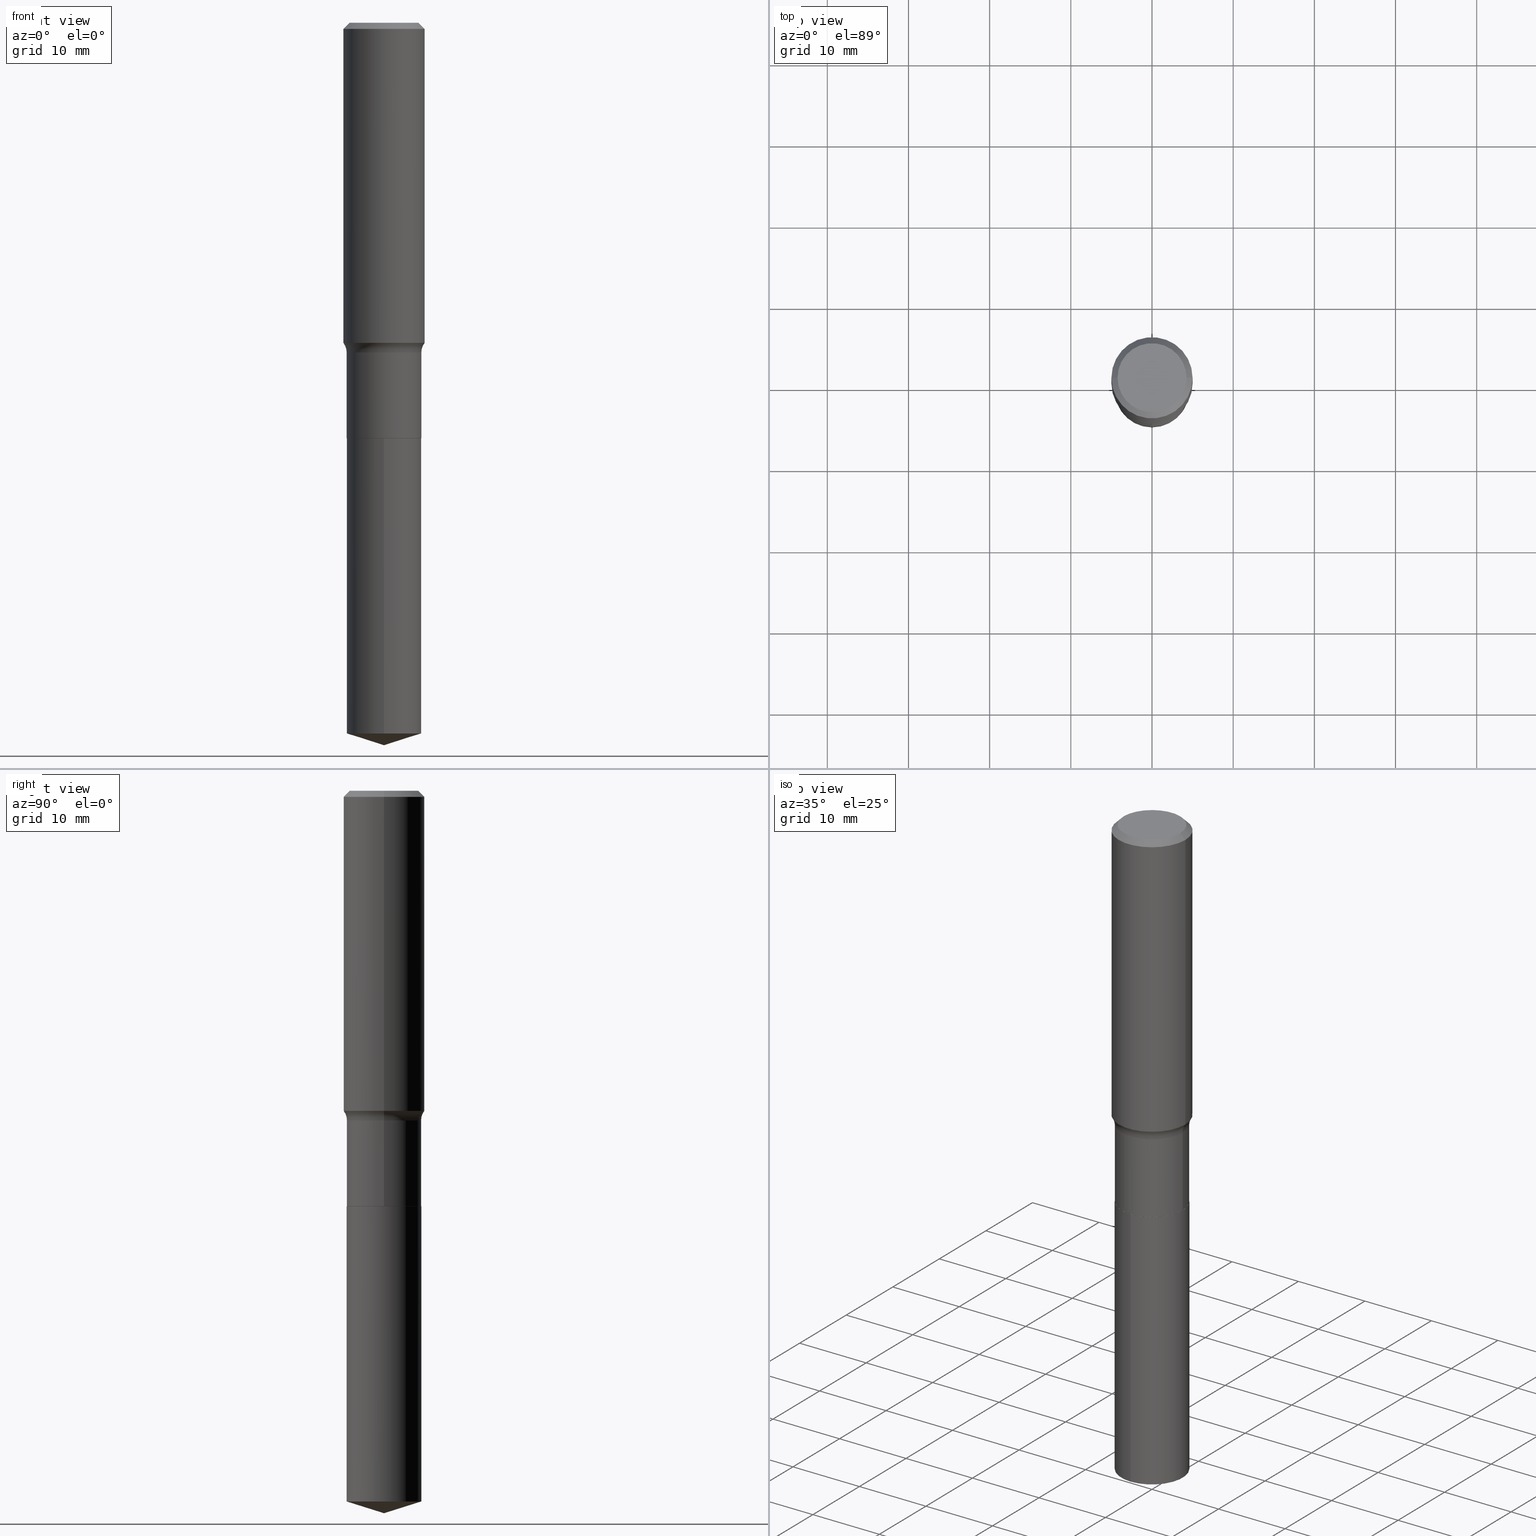
[diagram: canonical four-view strip — front | top / right | iso, engineering-drawing reading convention]
A machine part, canonical four-view strip (front | top / right | iso — engineering-drawing reading convention). The complete STEP part file that produces these views, byte-faithful:
ISO-10303-21;
HEADER;
FILE_DESCRIPTION (( 'STEP AP203' ),
    '1' );
FILE_NAME ('63774.STEP',
    '2024-04-19T15:09:34',
    ( '' ),
    ( '' ),
    'SwSTEP 2.0',
    'SolidWorks 2023',
    '' );
FILE_SCHEMA (( 'CONFIG_CONTROL_DESIGN' ));
ENDSEC;

DATA;
#1 = EDGE_LOOP ( 'NONE', ( #437, #14 ) ) ;
#2 = EDGE_CURVE ( 'NONE', #193, #15, #130, .T. ) ;
#3 = APPLICATION_CONTEXT ( 'configuration controlled 3d designs of mechanical parts and assemblies' ) ;
#4 = DIRECTION ( 'NONE',  ( 1.000000000000000000, 0.000000000000000000, 0.000000000000000000 ) ) ;
#5 = CARTESIAN_POINT ( 'NONE',  ( -0.1673224999999999851, 1.219954130253505460E-15, 4.096137381439757534E-18 ) ) ;
#6 = AXIS2_PLACEMENT_3D ( 'NONE', #238, #266, #38 ) ;
#7 = CARTESIAN_POINT ( 'NONE',  ( 0.000000000000000000, 0.000000000000000000, 0.000000000000000000 ) ) ;
#8 = EDGE_CURVE ( 'NONE', #320, #414, #295, .T. ) ;
#9 = CARTESIAN_POINT ( 'NONE',  ( 1.286792894461590621E-15, 0.1810999999999929888, -2.015700000000000269 ) ) ;
#10 = PLANE ( 'NONE',  #356 ) ;
#11 = ORIENTED_EDGE ( 'NONE', *, *, #373, .T. ) ;
#12 = DIRECTION ( 'NONE',  ( 1.000000000000000000, -6.982962677686267499E-15, 4.876294436782262290E-29 ) ) ;
#13 = DIRECTION ( 'NONE',  ( -2.445468806185136877E-29, 3.491481338843145188E-15, 1.000000000000000000 ) ) ;
#14 = ORIENTED_EDGE ( 'NONE', *, *, #8, .T. ) ;
#15 = VERTEX_POINT ( 'NONE', #308 ) ;
#16 = APPROVAL_DATE_TIME ( #470, #184 ) ;
#17 = VECTOR ( 'NONE', #368, 39.37007874015748143 ) ;
#18 = CYLINDRICAL_SURFACE ( 'NONE', #342, 0.1811000000000000110 ) ;
#19 = AXIS2_PLACEMENT_3D ( 'NONE', #27, #485, #62 ) ;
#20 = LOCAL_TIME ( 11, 9, 34.00000000000000000, #54 ) ;
#21 = ORIENTED_EDGE ( 'NONE', *, *, #136, .T. ) ;
#22 = EDGE_LOOP ( 'NONE', ( #168, #276, #388, #84 ) ) ;
#23 = AXIS2_PLACEMENT_3D ( 'NONE', #290, #448, #103 ) ;
#24 = EDGE_CURVE ( 'NONE', #323, #223, #187, .T. ) ;
#25 = CARTESIAN_POINT ( 'NONE',  ( 0.000000000000000000, 0.000000000000000000, 0.000000000000000000 ) ) ;
#26 = DIRECTION ( 'NONE',  ( 1.000000000000000000, -6.982962677686266711E-15, 4.876176775795935793E-29 ) ) ;
#27 = CARTESIAN_POINT ( 'NONE',  ( 3.910793714851269512E-29, -5.583576957077957107E-15, -1.599199999999999733 ) ) ;
#28 = EDGE_CURVE ( 'NONE', #414, #193, #408, .T. ) ;
#29 = AXIS2_PLACEMENT_3D ( 'NONE', #153, #111, #457 ) ;
#30 = DIRECTION ( 'NONE',  ( -2.445392554448218203E-29, 3.491590535670392048E-15, 1.000000000000000000 ) ) ;
#31 = CARTESIAN_POINT ( 'NONE',  ( 7.220858017463209485E-31, -1.030947152326916609E-16, -0.02952750000000019595 ) ) ;
#32 = DIRECTION ( 'NONE',  ( -2.445468806185136597E-29, 3.491481338843145583E-15, 1.000000000000000000 ) ) ;
#33 = AXIS2_PLACEMENT_3D ( 'NONE', #160, #382, #270 ) ;
#34 = CIRCLE ( 'NONE', #61, 0.1810999999999999832 ) ;
#35 = CC_DESIGN_SECURITY_CLASSIFICATION ( #419, ( #315 ) ) ;
#36 = DIRECTION ( 'NONE',  ( 1.000000000000000000, -6.982962677686266711E-15, 0.000000000000000000 ) ) ;
#37 = EDGE_CURVE ( 'NONE', #74, #271, #286, .T. ) ;
#38 = DIRECTION ( 'NONE',  ( -6.982962677686266711E-15, -1.000000000000000000, 3.016949744521549444E-15 ) ) ;
#39 = CARTESIAN_POINT ( 'NONE',  ( -0.1968500000000001082, 1.398703375343757985E-15, -9.682923725166787881E-30 ) ) ;
#40 = CIRCLE ( 'NONE', #6, 0.1811000000000000110 ) ;
#41 = LOCAL_TIME ( 11, 9, 34.00000000000000000, #121 ) ;
#42 = DIRECTION ( 'NONE',  ( -6.982962677686266711E-15, -1.000000000000000000, 3.016949744521549444E-15 ) ) ;
#43 = APPROVAL ( #237, 'UNSPECIFIED' ) ;
#44 = ORIENTED_EDGE ( 'NONE', *, *, #293, .F. ) ;
#45 = LINE ( 'NONE', #443, #188 ) ;
#46 = ORIENTED_EDGE ( 'NONE', *, *, #212, .F. ) ;
#47 = ORIENTED_EDGE ( 'NONE', *, *, #97, .F. ) ;
#48 = DIRECTION ( 'NONE',  ( 1.000000000000000000, -6.982962677686266711E-15, 4.876176775795936353E-29 ) ) ;
#49 = EDGE_LOOP ( 'NONE', ( #483, #436, #217, #452 ) ) ;
#50 = DATE_TIME_ROLE ( 'classification_date' ) ;
#51 = CIRCLE ( 'NONE', #76, 0.1806000000000000105 ) ;
#52 = ORIENTED_EDGE ( 'NONE', *, *, #136, .F. ) ;
#53 = LOCAL_TIME ( 11, 9, 34.00000000000000000, #281 ) ;
#54 = COORDINATED_UNIVERSAL_TIME_OFFSET ( 5, 0, .BEHIND. ) ;
#55 = ORIENTED_EDGE ( 'NONE', *, *, #37, .T. ) ;
#56 = DATE_AND_TIME ( #401, #190 ) ;
#57 = EDGE_CURVE ( 'NONE', #232, #223, #375, .T. ) ;
#58 = APPROVAL_STATUS ( 'not_yet_approved' ) ;
#59 = DIRECTION ( 'NONE',  ( 1.000000000000000000, -6.982962677686266711E-15, 4.876176775795936353E-29 ) ) ;
#60 = VECTOR ( 'NONE', #487, 39.37007874015748143 ) ;
#61 = AXIS2_PLACEMENT_3D ( 'NONE', #258, #491, #331 ) ;
#62 = DIRECTION ( 'NONE',  ( 1.000000000000000000, -6.982962677686265922E-15, 4.883557194083112901E-29 ) ) ;
#63 = ADVANCED_FACE ( 'NONE', ( #396 ), #75, .T. ) ;
#64 = FACE_OUTER_BOUND ( 'NONE', #72, .T. ) ;
#65 = CARTESIAN_POINT ( 'NONE',  ( 7.220858017463209485E-31, -1.030947152326916609E-16, -0.02952750000000019595 ) ) ;
#66 = CIRCLE ( 'NONE', #325, 0.1968500000000000527 ) ;
#67 = APPROVAL_PERSON_ORGANIZATION ( #353, #184, #321 ) ;
#68 = DESIGN_CONTEXT ( 'detailed design', #3, 'design' ) ;
#69 = DIRECTION ( 'NONE',  ( -2.445392554448218203E-29, 3.491590535670392048E-15, 1.000000000000000000 ) ) ;
#70 = CARTESIAN_POINT ( 'NONE',  ( -0.1968500000000000527, 1.271501487869850317E-15, -0.02952750000000019595 ) ) ;
#71 = CARTESIAN_POINT ( 'NONE',  ( -0.1806000000000000105, -5.754538753923386353E-15, -2.015699999999999381 ) ) ;
#72 = EDGE_LOOP ( 'NONE', ( #275, #123, #202, #267 ) ) ;
#73 = CARTESIAN_POINT ( 'NONE',  ( -0.1810999999999999832, -5.023012181095790067E-15, -1.599199999999999733 ) ) ;
#74 = VERTEX_POINT ( 'NONE', #479 ) ;
#75 = CONICAL_SURFACE ( 'NONE', #360, 0.1806000000000000105, 0.7853981633978239785 ) ;
#76 = AXIS2_PLACEMENT_3D ( 'NONE', #186, #87, #195 ) ;
#77 = ADVANCED_FACE ( 'NONE', ( #364 ), #171, .F. ) ;
#78 = DIRECTION ( 'NONE',  ( -6.659769872151632089E-15, -0.9537169507482267106, 0.3007057995042736187 ) ) ;
#79 = DIRECTION ( 'NONE',  ( -2.445468806185136597E-29, 3.491481338843145583E-15, 1.000000000000000000 ) ) ;
#80 = CARTESIAN_POINT ( 'NONE',  ( 4.928108738224286960E-29, -7.036033194036706451E-15, -2.015199999999999658 ) ) ;
#81 = DIRECTION ( 'NONE',  ( 1.000000000000000000, -6.982962677686263555E-15, 0.000000000000000000 ) ) ;
#82 = ADVANCED_FACE ( 'NONE', ( #431 ), #91, .T. ) ;
#83 = CARTESIAN_POINT ( 'NONE',  ( -0.1968500000000000527, -1.362583810088790289E-15, -0.02952750000000019595 ) ) ;
#84 = ORIENTED_EDGE ( 'NONE', *, *, #2, .F. ) ;
#85 = DIRECTION ( 'NONE',  ( -2.445468806185136597E-29, 3.491481338843145583E-15, 1.000000000000000000 ) ) ;
#86 = VERTEX_POINT ( 'NONE', #191 ) ;
#87 = DIRECTION ( 'NONE',  ( -2.445468806185136597E-29, 3.491481338843145583E-15, 1.000000000000000000 ) ) ;
#88 = ORIENTED_EDGE ( 'NONE', *, *, #110, .F. ) ;
#89 = ORIENTED_EDGE ( 'NONE', *, *, #142, .F. ) ;
#90 = PERSON_AND_ORGANIZATION_ROLE ( 'classification_officer' ) ;
#91 = CYLINDRICAL_SURFACE ( 'NONE', #312, 0.1811000000000000110 ) ;
#92 = ORIENTED_EDGE ( 'NONE', *, *, #24, .T. ) ;
#93 = EDGE_LOOP ( 'NONE', ( #89, #313 ) ) ;
#94 = DATE_AND_TIME ( #243, #41 ) ;
#95 = CIRCLE ( 'NONE', #426, 0.1811000000000000110 ) ;
#96 = ORIENTED_EDGE ( 'NONE', *, *, #322, .F. ) ;
#97 = EDGE_CURVE ( 'NONE', #127, #232, #228, .T. ) ;
#98 = DATE_TIME_ROLE ( 'creation_date' ) ;
#99 = FACE_OUTER_BOUND ( 'NONE', #472, .T. ) ;
#100 = EDGE_CURVE ( 'NONE', #86, #133, #207, .T. ) ;
#101 = APPROVAL_PERSON_ORGANIZATION ( #362, #43, #442 ) ;
#102 = DIRECTION ( 'NONE',  ( 1.000000000000000000, -6.982962677686266711E-15, 4.876176775795935793E-29 ) ) ;
#103 = DIRECTION ( 'NONE',  ( 1.000000000000000000, -6.982962677686266711E-15, 0.000000000000000000 ) ) ;
#104 = DIRECTION ( 'NONE',  ( -6.982962677686266711E-15, -1.000000000000000000, 3.491481338843145583E-15 ) ) ;
#105 = DIRECTION ( 'NONE',  ( 6.776566513254257349E-15, 0.9537169507482289310, 0.3007057995042669574 ) ) ;
#106 = AXIS2_PLACEMENT_3D ( 'NONE', #183, #337, #4 ) ;
#107 = CYLINDRICAL_SURFACE ( 'NONE', #165, 0.1968500000000001082 ) ;
#108 = EDGE_CURVE ( 'NONE', #86, #351, #135, .T. ) ;
#109 = LINE ( 'NONE', #304, #441 ) ;
#110 = EDGE_CURVE ( 'NONE', #271, #309, #349, .T. ) ;
#111 = DIRECTION ( 'NONE',  ( -2.445468806185136597E-29, 3.491481338843145583E-15, 1.000000000000000000 ) ) ;
#112 = CIRCLE ( 'NONE', #29, 0.1811000000000000110 ) ;
#113 = CARTESIAN_POINT ( 'NONE',  ( -1.001697619218021790E-46, 1.430158722866389718E-32, 4.096137381448108366E-18 ) ) ;
#114 = CC_DESIGN_PERSON_AND_ORGANIZATION_ASSIGNMENT ( #392, #124, ( #278 ) ) ;
#115 = DIRECTION ( 'NONE',  ( 2.445392554448217642E-29, -3.491590535670392442E-15, -1.000000000000000000 ) ) ;
#116 = DIRECTION ( 'NONE',  ( 1.000000000000000000, -6.982962677686266711E-15, 0.000000000000000000 ) ) ;
#117 = DIRECTION ( 'NONE',  ( -2.445468806185136597E-29, 3.491481338843145583E-15, 1.000000000000000000 ) ) ;
#118 = EDGE_LOOP ( 'NONE', ( #169, #432, #400, #46 ) ) ;
#119 = DIMENSIONAL_EXPONENTS ( 1.000000000000000000, 0.000000000000000000, 0.000000000000000000, 0.000000000000000000, 0.000000000000000000, 0.000000000000000000, 0.000000000000000000 ) ;
#120 = EDGE_LOOP ( 'NONE', ( #357, #196, #96, #394 ) ) ;
#121 = COORDINATED_UNIVERSAL_TIME_OFFSET ( 5, 0, .BEHIND. ) ;
#122 = CARTESIAN_POINT ( 'NONE',  ( 4.929331472627378640E-29, -7.037778934706127166E-15, -2.015699999999999381 ) ) ;
#123 = ORIENTED_EDGE ( 'NONE', *, *, #262, .T. ) ;
#124 = PERSON_AND_ORGANIZATION_ROLE ( 'creator' ) ;
#125 = DIRECTION ( 'NONE',  ( 1.000000000000000000, -6.982962677686265922E-15, 4.876176775795935793E-29 ) ) ;
#126 = ORIENTED_EDGE ( 'NONE', *, *, #108, .T. ) ;
#127 = VERTEX_POINT ( 'NONE', #326 ) ;
#128 = ADVANCED_FACE ( 'NONE', ( #435 ), #154, .T. ) ;
#129 = PERSON_AND_ORGANIZATION_ROLE ( 'design_owner' ) ;
#130 = CIRCLE ( 'NONE', #466, 0.1968500000000000527 ) ;
#131 = VECTOR ( 'NONE', #420, 39.37007874015748143 ) ;
#132 = CC_DESIGN_APPROVAL ( #256, ( #315 ) ) ;
#133 = VERTEX_POINT ( 'NONE', #467 ) ;
#134 = PERSON_AND_ORGANIZATION ( #474, #220 ) ;
#135 = LINE ( 'NONE', #231, #417 ) ;
#136 = EDGE_CURVE ( 'NONE', #355, #351, #40, .T. ) ;
#137 = FACE_OUTER_BOUND ( 'NONE', #350, .T. ) ;
#138 = VECTOR ( 'NONE', #198, 39.37007874015748854 ) ;
#139 = CIRCLE ( 'NONE', #213, 0.1811000000000000110 ) ;
#140 = CARTESIAN_POINT ( 'NONE',  ( -1.264614540928933635E-15, -0.1811000000000070609, -2.015699999999999381 ) ) ;
#141 = FACE_OUTER_BOUND ( 'NONE', #22, .T. ) ;
#142 = EDGE_CURVE ( 'NONE', #127, #74, #51, .T. ) ;
#143 = CARTESIAN_POINT ( 'NONE',  ( 1.286792894461625725E-15, 0.1810999999999929888, -2.015700000000000269 ) ) ;
#144 = MANIFOLD_SOLID_BREP ( 'Body-Move/Copy2[2]', #280 ) ;
#145 = TOROIDAL_SURFACE ( 'NONE', #19, 0.2590999999999999970, 0.07800000000000001377 ) ;
#146 = AXIS2_PLACEMENT_3D ( 'NONE', #149, #224, #116 ) ;
#147 = CYLINDRICAL_SURFACE ( 'NONE', #458, 0.1811000000000000110 ) ;
#148 = CC_DESIGN_DATE_AND_TIME_ASSIGNMENT ( #478, #50, ( #419 ) ) ;
#149 = CARTESIAN_POINT ( 'NONE',  ( 3.795858306948668529E-29, -5.419479655632405650E-15, -1.552200664898319538 ) ) ;
#150 = ADVANCED_FACE ( 'NONE', ( #354 ), #10, .F. ) ;
#151 = MECHANICAL_CONTEXT ( 'NONE', #175, 'mechanical' ) ;
#152 = ORIENTED_EDGE ( 'NONE', *, *, #192, .T. ) ;
#153 = CARTESIAN_POINT ( 'NONE',  ( 4.928108738224286960E-29, -7.036033194036706451E-15, -2.015199999999999658 ) ) ;
#154 = CYLINDRICAL_SURFACE ( 'NONE', #403, 0.1811000000000000110 ) ;
#155 = CARTESIAN_POINT ( 'NONE',  ( 8.428931263980175270E-29, -1.203459201810845849E-14, -3.446799389334016528 ) ) ;
#156 = FACE_OUTER_BOUND ( 'NONE', #361, .T. ) ;
#157 = ORIENTED_EDGE ( 'NONE', *, *, #415, .F. ) ;
#158 = EDGE_CURVE ( 'NONE', #309, #223, #397, .T. ) ;
#159 = APPROVAL_DATE_TIME ( #94, #43 ) ;
#160 = CARTESIAN_POINT ( 'NONE',  ( -5.008488096090108951E-47, 7.150793614331948590E-33, 2.048068690724054183E-18 ) ) ;
#161 = CC_DESIGN_PERSON_AND_ORGANIZATION_ASSIGNMENT ( #282, #90, ( #419 ) ) ;
#162 = ORIENTED_EDGE ( 'NONE', *, *, #28, .F. ) ;
#163 = EDGE_LOOP ( 'NONE', ( #338, #21 ) ) ;
#164 = DATE_AND_TIME ( #473, #53 ) ;
#165 = AXIS2_PLACEMENT_3D ( 'NONE', #409, #32, #26 ) ;
#166 = CONICAL_SURFACE ( 'NONE', #459, 0.1806000000000000105, 0.7853981633978239785 ) ;
#167 = CARTESIAN_POINT ( 'NONE',  ( 8.428931263980175270E-29, -1.203459201810845849E-14, -3.446799389334016528 ) ) ;
#168 = ORIENTED_EDGE ( 'NONE', *, *, #399, .F. ) ;
#169 = ORIENTED_EDGE ( 'NONE', *, *, #455, .T. ) ;
#170 = APPLICATION_PROTOCOL_DEFINITION ( 'international standard', 'config_control_design', 1994, #3 ) ;
#171 = PLANE ( 'NONE',  #33 ) ;
#172 = CARTESIAN_POINT ( 'NONE',  ( 4.929331472627379200E-29, -7.037778934706127955E-15, -2.015699999999999825 ) ) ;
#173 = DIRECTION ( 'NONE',  ( 1.000000000000000000, -6.982962677686265922E-15, 4.883557194083112901E-29 ) ) ;
#174 = AXIS2_PLACEMENT_3D ( 'NONE', #274, #235, #301 ) ;
#175 = APPLICATION_CONTEXT ( 'configuration controlled 3d designs of mechanical parts and assemblies' ) ;
#176 = CIRCLE ( 'NONE', #23, 0.1968500000000001915 ) ;
#177 = ADVANCED_FACE ( 'NONE', ( #156 ), #18, .T. ) ;
#178 = CARTESIAN_POINT ( 'NONE',  ( -0.2590999999999999970, -3.742560728723537546E-15, -1.599199999999999733 ) ) ;
#179 = CARTESIAN_POINT ( 'NONE',  ( -0.1811000000000000110, -5.023012181095790067E-15, -2.015199999999999658 ) ) ;
#180 = AXIS2_PLACEMENT_3D ( 'NONE', #405, #294, #209 ) ;
#181 = ADVANCED_FACE ( 'NONE', ( #461 ), #305, .F. ) ;
#182 = DIRECTION ( 'NONE',  ( -6.982962677686265922E-15, -1.000000000000000000, 3.500519750498701277E-15 ) ) ;
#183 = CARTESIAN_POINT ( 'NONE',  ( 0.000000000000000000, 0.000000000000000000, 0.000000000000000000 ) ) ;
#184 = APPROVAL ( #58, 'UNSPECIFIED' ) ;
#185 =( CONVERSION_BASED_UNIT ( 'INCH', #194 ) LENGTH_UNIT ( ) NAMED_UNIT ( #119 ) );
#186 = CARTESIAN_POINT ( 'NONE',  ( 4.929331472627378640E-29, -7.037778934706127166E-15, -2.015699999999999381 ) ) ;
#187 = CIRCLE ( 'NONE', #255, 0.07800000000000002764 ) ;
#188 = VECTOR ( 'NONE', #453, 39.37007874015748143 ) ;
#189 = DIRECTION ( 'NONE',  ( -2.445392554448218203E-29, 3.491590535670392048E-15, 1.000000000000000000 ) ) ;
#190 = LOCAL_TIME ( 11, 9, 34.00000000000000000, #430 ) ;
#191 = CARTESIAN_POINT ( 'NONE',  ( -1.264614540928898728E-15, -0.1811000000000120569, -3.446799389334016084 ) ) ;
#192 = EDGE_CURVE ( 'NONE', #232, #271, #139, .T. ) ;
#193 = VERTEX_POINT ( 'NONE', #83 ) ;
#194 = LENGTH_MEASURE_WITH_UNIT ( LENGTH_MEASURE( 0.02539999999999999897 ), #376 );
#195 = DIRECTION ( 'NONE',  ( 1.000000000000000000, -6.982962677686263555E-15, 0.000000000000000000 ) ) ;
#196 = ORIENTED_EDGE ( 'NONE', *, *, #423, .T. ) ;
#197 = VERTEX_POINT ( 'NONE', #386 ) ;
#198 = DIRECTION ( 'NONE',  ( 0.7071067811868130271, -2.468850131085038979E-15, 0.7071067811862817853 ) ) ;
#199 = ORIENTED_EDGE ( 'NONE', *, *, #97, .T. ) ;
#200 = ORIENTED_EDGE ( 'NONE', *, *, #449, .T. ) ;
#201 = VECTOR ( 'NONE', #105, 39.37007874015748854 ) ;
#202 = ORIENTED_EDGE ( 'NONE', *, *, #158, .T. ) ;
#203 = PERSON_AND_ORGANIZATION_ROLE ( 'creator' ) ;
#204 = CALENDAR_DATE ( 2024, 19, 4 ) ;
#205 = COORDINATED_UNIVERSAL_TIME_OFFSET ( 5, 0, .BEHIND. ) ;
#206 = CARTESIAN_POINT ( 'NONE',  ( 7.058472365498860368E-29, -3.988727992940315729E-15, -2.015699999999999381 ) ) ;
#207 = CIRCLE ( 'NONE', #490, 0.1811000000000000110 ) ;
#208 = AXIS2_PLACEMENT_3D ( 'NONE', #65, #263, #348 ) ;
#209 = DIRECTION ( 'NONE',  ( 1.000000000000000000, -6.982962677686267499E-15, 4.876294436782262290E-29 ) ) ;
#210 = CARTESIAN_POINT ( 'NONE',  ( 3.910793714851269512E-29, -5.583576957077957107E-15, -1.599199999999999733 ) ) ;
#211 = DIRECTION ( 'NONE',  ( -2.445468806185136597E-29, 3.491481338843145583E-15, 1.000000000000000000 ) ) ;
#212 = EDGE_CURVE ( 'NONE', #323, #15, #45, .T. ) ;
#213 = AXIS2_PLACEMENT_3D ( 'NONE', #80, #117, #425 ) ;
#214 = LOCAL_TIME ( 11, 9, 34.00000000000000000, #205 ) ;
#215 = DIRECTION ( 'NONE',  ( -2.445392554448218203E-29, 3.491590535670392048E-15, 1.000000000000000000 ) ) ;
#216 = CARTESIAN_POINT ( 'NONE',  ( 0.1810999999999999832, -6.848191498006940046E-15, -1.599199999999999733 ) ) ;
#217 = ORIENTED_EDGE ( 'NONE', *, *, #28, .T. ) ;
#218 = APPLICATION_PROTOCOL_DEFINITION ( 'international standard', 'config_control_design', 1994, #175 ) ;
#219 = TOROIDAL_SURFACE ( 'NONE', #241, 0.2590999999999999970, 0.07800000000000001377 ) ;
#220 = ORGANIZATION ( 'UNSPECIFIED', 'UNSPECIFIED', '' ) ;
#221 = CARTESIAN_POINT ( 'NONE',  ( 0.1968500000000000527, -1.453583746094018101E-15, -0.02952750000000019595 ) ) ;
#222 = CARTESIAN_POINT ( 'NONE',  ( 7.220858017463209485E-31, -1.030947152326916609E-16, -0.02952750000000019595 ) ) ;
#223 = VERTEX_POINT ( 'NONE', #216 ) ;
#224 = DIRECTION ( 'NONE',  ( -2.445468806185136597E-29, 3.491481338843145583E-15, 1.000000000000000000 ) ) ;
#225 = DIRECTION ( 'NONE',  ( -2.445392554448218203E-29, 3.491590535670392442E-15, 1.000000000000000000 ) ) ;
#226 = LINE ( 'NONE', #39, #131 ) ;
#227 = ADVANCED_FACE ( 'NONE', ( #407 ), #289, .T. ) ;
#228 = LINE ( 'NONE', #316, #138 ) ;
#229 = CIRCLE ( 'NONE', #329, 0.1806000000000000105 ) ;
#230 = CARTESIAN_POINT ( 'NONE',  ( 4.929331472627378640E-29, -7.037778934706127166E-15, -2.015699999999999381 ) ) ;
#231 = CARTESIAN_POINT ( 'NONE',  ( -1.264614540928933635E-15, -0.1811000000000070609, -2.015699999999999381 ) ) ;
#232 = VERTEX_POINT ( 'NONE', #413 ) ;
#233 = EDGE_LOOP ( 'NONE', ( #429, #55, #468, #47 ) ) ;
#234 = PERSON_AND_ORGANIZATION ( #474, #220 ) ;
#235 = DIRECTION ( 'NONE',  ( -2.445468806185136597E-29, 3.491481338843145583E-15, 1.000000000000000000 ) ) ;
#236 = ORIENTED_EDGE ( 'NONE', *, *, #57, .T. ) ;
#237 = APPROVAL_STATUS ( 'not_yet_approved' ) ;
#238 = CARTESIAN_POINT ( 'NONE',  ( 4.929331472627379200E-29, -7.037778934706127955E-15, -2.015699999999999825 ) ) ;
#239 = EDGE_LOOP ( 'NONE', ( #44, #469, #157 ) ) ;
#240 = EDGE_LOOP ( 'NONE', ( #477, #347, #92, #433 ) ) ;
#241 = AXIS2_PLACEMENT_3D ( 'NONE', #210, #370, #173 ) ;
#242 = ORIENTED_EDGE ( 'NONE', *, *, #462, .T. ) ;
#243 = CALENDAR_DATE ( 2024, 19, 4 ) ;
#244 = PERSON_AND_ORGANIZATION ( #474, #220 ) ;
#245 = ADVANCED_FACE ( 'NONE', ( #374 ), #330, .T. ) ;
#246 = ADVANCED_FACE ( 'NONE', ( #141 ), #107, .T. ) ;
#247 = EDGE_LOOP ( 'NONE', ( #152, #398, #253, #279 ) ) ;
#248 = DIRECTION ( 'NONE',  ( -6.982962677686266711E-15, -1.000000000000000000, 3.016949744521549444E-15 ) ) ;
#249 = VECTOR ( 'NONE', #332, 39.37007874015748854 ) ;
#250 = VECTOR ( 'NONE', #13, 39.37007874015748143 ) ;
#251 = DIRECTION ( 'NONE',  ( 7.105427357601001859E-15, 1.000000000000000000, -3.491481338843145583E-15 ) ) ;
#252 = FACE_OUTER_BOUND ( 'NONE', #49, .T. ) ;
#253 = ORIENTED_EDGE ( 'NONE', *, *, #269, .F. ) ;
#254 = CARTESIAN_POINT ( 'NONE',  ( 8.568410971531111651E-29, -1.223418407793548592E-14, -3.503899999999999793 ) ) ;
#255 = AXIS2_PLACEMENT_3D ( 'NONE', #428, #104, #291 ) ;
#256 = APPROVAL ( #324, 'UNSPECIFIED' ) ;
#257 =( GEOMETRIC_REPRESENTATION_CONTEXT ( 3 ) GLOBAL_UNCERTAINTY_ASSIGNED_CONTEXT ( ( #450 ) ) GLOBAL_UNIT_ASSIGNED_CONTEXT ( ( #185, #296, #492 ) ) REPRESENTATION_CONTEXT ( 'NONE', 'WORKASPACE' ) );
#258 = CARTESIAN_POINT ( 'NONE',  ( 3.910793714851269512E-29, -5.583576957077957107E-15, -1.599199999999999733 ) ) ;
#259 = DIRECTION ( 'NONE',  ( -2.445468806185136597E-29, 3.491481338843145583E-15, 1.000000000000000000 ) ) ;
#260 = CONICAL_SURFACE ( 'NONE', #363, 124.8659371009151755, 1.265363707695891904 ) ;
#261 = DIRECTION ( 'NONE',  ( 1.000000000000000000, -6.982962677686263555E-15, 0.000000000000000000 ) ) ;
#262 = EDGE_CURVE ( 'NONE', #197, #309, #411, .T. ) ;
#263 = DIRECTION ( 'NONE',  ( 2.445468806185136597E-29, -3.491481338843145583E-15, -1.000000000000000000 ) ) ;
#264 = CARTESIAN_POINT ( 'NONE',  ( 4.929331472627379200E-29, -7.037778934706127955E-15, -2.015699999999999825 ) ) ;
#265 = DIRECTION ( 'NONE',  ( -2.445468806185136597E-29, 3.491481338843145583E-15, 1.000000000000000000 ) ) ;
#266 = DIRECTION ( 'NONE',  ( -2.445392554448218203E-29, 3.491590535670392048E-15, 1.000000000000000000 ) ) ;
#267 = ORIENTED_EDGE ( 'NONE', *, *, #24, .F. ) ;
#268 = CIRCLE ( 'NONE', #383, 0.1811000000000000110 ) ;
#269 = EDGE_CURVE ( 'NONE', #223, #309, #34, .T. ) ;
#270 = DIRECTION ( 'NONE',  ( -1.000000000000000000, 6.982962677686265922E-15, -4.876176775795935793E-29 ) ) ;
#271 = VERTEX_POINT ( 'NONE', #179 ) ;
#272 = ORIENTED_EDGE ( 'NONE', *, *, #158, .F. ) ;
#273 = PERSON_AND_ORGANIZATION_ROLE ( 'design_supplier' ) ;
#274 = CARTESIAN_POINT ( 'NONE',  ( 3.910793714851269512E-29, -5.583576957077957107E-15, -1.599199999999999733 ) ) ;
#275 = ORIENTED_EDGE ( 'NONE', *, *, #359, .F. ) ;
#276 = ORIENTED_EDGE ( 'NONE', *, *, #359, .T. ) ;
#277 = ORIENTED_EDGE ( 'NONE', *, *, #100, .F. ) ;
#278 = PRODUCT_DEFINITION ( 'UNKNOWN', '', #315, #68 ) ;
#279 = ORIENTED_EDGE ( 'NONE', *, *, #57, .F. ) ;
#280 = CLOSED_SHELL ( 'NONE', ( #63, #227, #245, #297, #82, #177, #299, #246, #365, #77, #150, #480 ) ) ;
#281 = COORDINATED_UNIVERSAL_TIME_OFFSET ( 5, 0, .BEHIND. ) ;
#282 = PERSON_AND_ORGANIZATION ( #474, #220 ) ;
#283 = ADVANCED_FACE ( 'NONE', ( #99 ), #147, .T. ) ;
#284 = DIRECTION ( 'NONE',  ( -2.445392554448218203E-29, 3.491590535670392048E-15, 1.000000000000000000 ) ) ;
#285 = PRODUCT_RELATED_PRODUCT_CATEGORY ( 'detail', '', ( #406 ) ) ;
#286 = LINE ( 'NONE', #71, #249 ) ;
#287 = EDGE_LOOP ( 'NONE', ( #427, #391, #199, #352 ) ) ;
#288 = CARTESIAN_POINT ( 'NONE',  ( -8.770673274706397898E-28, 1.252302303478411697E-13, 35.86617874015747987 ) ) ;
#289 = CONICAL_SURFACE ( 'NONE', #418, 0.1968500000000000527, 0.7853981633974459475 ) ;
#290 = CARTESIAN_POINT ( 'NONE',  ( 3.795858306948668529E-29, -5.419479655632405650E-15, -1.552200664898319538 ) ) ;
#291 = DIRECTION ( 'NONE',  ( 1.000000000000000000, -6.982962677686268288E-15, 0.000000000000000000 ) ) ;
#292 = DIRECTION ( 'NONE',  ( -1.000000000000000000, 7.105427357601001859E-15, 0.000000000000000000 ) ) ;
#293 = EDGE_CURVE ( 'NONE', #307, #133, #334, .T. ) ;
#294 = DIRECTION ( 'NONE',  ( -2.445468806185136597E-29, 3.491481338843145583E-15, 1.000000000000000000 ) ) ;
#295 = CIRCLE ( 'NONE', #475, 0.1673224999999999851 ) ;
#296 =( NAMED_UNIT ( * ) PLANE_ANGLE_UNIT ( ) SI_UNIT ( $, .RADIAN. ) );
#297 = ADVANCED_FACE ( 'NONE', ( #64 ), #219, .F. ) ;
#298 = CIRCLE ( 'NONE', #146, 0.1968500000000001915 ) ;
#299 = ADVANCED_FACE ( 'NONE', ( #367 ), #145, .F. ) ;
#300 = DIRECTION ( 'NONE',  ( -2.445468806185136597E-29, 3.491481338843145583E-15, 1.000000000000000000 ) ) ;
#301 = DIRECTION ( 'NONE',  ( 1.000000000000000000, -6.982962677686267499E-15, 0.000000000000000000 ) ) ;
#302 = MANIFOLD_SOLID_BREP ( 'Body-Move/Copy2[1]', #440 ) ;
#303 = DIRECTION ( 'NONE',  ( -2.445468806185136597E-29, 3.491481338843145583E-15, 1.000000000000000000 ) ) ;
#304 = CARTESIAN_POINT ( 'NONE',  ( 8.568410971531111651E-29, -1.223418407793548908E-14, -3.503899999999999793 ) ) ;
#305 = PLANE ( 'NONE',  #395 ) ;
#306 = ADVANCED_BREP_SHAPE_REPRESENTATION ( '63774', ( #302, #144, #106 ), #257 ) ;
#307 = VERTEX_POINT ( 'NONE', #254 ) ;
#308 = CARTESIAN_POINT ( 'NONE',  ( 0.1968500000000000527, -1.477690918335233688E-15, -0.02952750000000019595 ) ) ;
#309 = VERTEX_POINT ( 'NONE', #73 ) ;
#310 = SHAPE_DEFINITION_REPRESENTATION ( #481, #306 ) ;
#311 = DIRECTION ( 'NONE',  ( -2.445468806185136597E-29, 3.491481338843145583E-15, 1.000000000000000000 ) ) ;
#312 = AXIS2_PLACEMENT_3D ( 'NONE', #7, #79, #48 ) ;
#313 = ORIENTED_EDGE ( 'NONE', *, *, #444, .F. ) ;
#314 = PERSON_AND_ORGANIZATION ( #474, #220 ) ;
#315 = PRODUCT_DEFINITION_FORMATION_WITH_SPECIFIED_SOURCE ( 'ANY', '', #406, .NOT_KNOWN. ) ;
#316 = CARTESIAN_POINT ( 'NONE',  ( 0.1806000000000000105, -8.298901994296266309E-15, -2.015699999999999381 ) ) ;
#317 = EDGE_CURVE ( 'NONE', #414, #320, #476, .T. ) ;
#318 = ORIENTED_EDGE ( 'NONE', *, *, #412, .F. ) ;
#319 = ORIENTED_EDGE ( 'NONE', *, *, #8, .F. ) ;
#320 = VERTEX_POINT ( 'NONE', #366 ) ;
#321 = APPROVAL_ROLE ( '' ) ;
#322 = EDGE_CURVE ( 'NONE', #351, #355, #95, .T. ) ;
#323 = VERTEX_POINT ( 'NONE', #328 ) ;
#324 = APPROVAL_STATUS ( 'not_yet_approved' ) ;
#325 = AXIS2_PLACEMENT_3D ( 'NONE', #340, #265, #36 ) ;
#326 = CARTESIAN_POINT ( 'NONE',  ( 0.1806000000000000105, -8.298901994296266309E-15, -2.015699999999999381 ) ) ;
#327 = DIRECTION ( 'NONE',  ( 2.445468806185136597E-29, -3.491481338843145583E-15, -1.000000000000000000 ) ) ;
#328 = CARTESIAN_POINT ( 'NONE',  ( 0.1968500000000001915, -6.794075858734949625E-15, -1.552200664898319538 ) ) ;
#329 = AXIS2_PLACEMENT_3D ( 'NONE', #381, #259, #81 ) ;
#330 = CYLINDRICAL_SURFACE ( 'NONE', #377, 0.1968500000000001082 ) ;
#331 = DIRECTION ( 'NONE',  ( 1.000000000000000000, -6.982962677686267499E-15, 0.000000000000000000 ) ) ;
#332 = DIRECTION ( 'NONE',  ( -0.7071067811868130271, 7.493145998871311837E-15, 0.7071067811862817853 ) ) ;
#333 = ADVANCED_FACE ( 'NONE', ( #137 ), #260, .T. ) ;
#334 = LINE ( 'NONE', #451, #201 ) ;
#335 = CC_DESIGN_PERSON_AND_ORGANIZATION_ASSIGNMENT ( #134, #273, ( #315 ) ) ;
#336 = VECTOR ( 'NONE', #378, 39.37007874015748143 ) ;
#337 = DIRECTION ( 'NONE',  ( 0.000000000000000000, 0.000000000000000000, 1.000000000000000000 ) ) ;
#338 = ORIENTED_EDGE ( 'NONE', *, *, #322, .T. ) ;
#339 = DIRECTION ( 'NONE',  ( 1.000000000000000000, -6.982962677686266711E-15, 0.000000000000000000 ) ) ;
#340 = CARTESIAN_POINT ( 'NONE',  ( 7.220858017463209485E-31, -1.030947152326916609E-16, -0.02952750000000019595 ) ) ;
#341 = DIRECTION ( 'NONE',  ( -2.438088387897960049E-29, 3.491481338843145188E-15, 1.000000000000000000 ) ) ;
#342 = AXIS2_PLACEMENT_3D ( 'NONE', #25, #393, #59 ) ;
#343 = CONICAL_SURFACE ( 'NONE', #446, 124.8659371009151755, 1.265363707695891904 ) ;
#344 = CC_DESIGN_DATE_AND_TIME_ASSIGNMENT ( #56, #98, ( #278 ) ) ;
#345 = LINE ( 'NONE', #9, #454 ) ;
#346 = DIRECTION ( 'NONE',  ( -6.982962677686266711E-15, -1.000000000000000000, 3.016949744521549444E-15 ) ) ;
#347 = ORIENTED_EDGE ( 'NONE', *, *, #455, .F. ) ;
#348 = DIRECTION ( 'NONE',  ( -1.000000000000000000, 6.982962677686266711E-15, 0.000000000000000000 ) ) ;
#349 = LINE ( 'NONE', #380, #250 ) ;
#350 = EDGE_LOOP ( 'NONE', ( #318, #438, #277 ) ) ;
#351 = VERTEX_POINT ( 'NONE', #140 ) ;
#352 = ORIENTED_EDGE ( 'NONE', *, *, #449, .F. ) ;
#353 = PERSON_AND_ORGANIZATION ( #474, #220 ) ;
#354 = FACE_OUTER_BOUND ( 'NONE', #93, .T. ) ;
#355 = VERTEX_POINT ( 'NONE', #143 ) ;
#356 = AXIS2_PLACEMENT_3D ( 'NONE', #206, #341, #125 ) ;
#357 = ORIENTED_EDGE ( 'NONE', *, *, #100, .T. ) ;
#358 = CALENDAR_DATE ( 2024, 19, 4 ) ;
#359 = EDGE_CURVE ( 'NONE', #197, #323, #176, .T. ) ;
#360 = AXIS2_PLACEMENT_3D ( 'NONE', #122, #311, #390 ) ;
#361 = EDGE_LOOP ( 'NONE', ( #88, #200, #236, #272 ) ) ;
#362 = PERSON_AND_ORGANIZATION ( #474, #220 ) ;
#363 = AXIS2_PLACEMENT_3D ( 'NONE', #288, #215, #447 ) ;
#364 = FACE_OUTER_BOUND ( 'NONE', #1, .T. ) ;
#365 = ADVANCED_FACE ( 'NONE', ( #252 ), #371, .T. ) ;
#366 = CARTESIAN_POINT ( 'NONE',  ( 0.1673224999999999851, -1.300749711163072594E-15, 4.096137381456741925E-18 ) ) ;
#367 = FACE_OUTER_BOUND ( 'NONE', #240, .T. ) ;
#368 = DIRECTION ( 'NONE',  ( -0.7071067811865459074, 2.468850131082239706E-15, -0.7071067811865492381 ) ) ;
#369 = CC_DESIGN_PERSON_AND_ORGANIZATION_ASSIGNMENT ( #244, #129, ( #406 ) ) ;
#370 = DIRECTION ( 'NONE',  ( -2.445468806185136597E-29, 3.491481338843145583E-15, 1.000000000000000000 ) ) ;
#371 = CONICAL_SURFACE ( 'NONE', #208, 0.1968500000000000527, 0.7853981633974459475 ) ;
#372 = CARTESIAN_POINT ( 'NONE',  ( 0.000000000000000000, 0.000000000000000000, 0.000000000000000000 ) ) ;
#373 = EDGE_CURVE ( 'NONE', #15, #193, #66, .T. ) ;
#374 = FACE_OUTER_BOUND ( 'NONE', #118, .T. ) ;
#375 = LINE ( 'NONE', #424, #60 ) ;
#376 =( LENGTH_UNIT ( ) NAMED_UNIT ( * ) SI_UNIT ( $, .METRE. ) );
#377 = AXIS2_PLACEMENT_3D ( 'NONE', #372, #211, #102 ) ;
#378 = DIRECTION ( 'NONE',  ( 0.7071067811865459074, -7.319954787623251312E-15, -0.7071067811865492381 ) ) ;
#379 = LINE ( 'NONE', #221, #336 ) ;
#380 = CARTESIAN_POINT ( 'NONE',  ( -0.1811000000000000110, 1.286792894461541515E-15, -8.908191448451634438E-30 ) ) ;
#381 = CARTESIAN_POINT ( 'NONE',  ( 4.929331472627378640E-29, -7.037778934706127166E-15, -2.015699999999999381 ) ) ;
#382 = DIRECTION ( 'NONE',  ( 2.438088387897960049E-29, -3.491481338843145188E-15, -1.000000000000000000 ) ) ;
#383 = AXIS2_PLACEMENT_3D ( 'NONE', #155, #189, #422 ) ;
#384 = CC_DESIGN_APPROVAL ( #43, ( #419 ) ) ;
#385 = DIRECTION ( 'NONE',  ( -2.445392554448218203E-29, 3.491590535670392048E-15, 1.000000000000000000 ) ) ;
#386 = CARTESIAN_POINT ( 'NONE',  ( -0.1968500000000001915, -4.020776280288646285E-15, -1.552200664898319538 ) ) ;
#387 = ORIENTED_EDGE ( 'NONE', *, *, #423, .F. ) ;
#388 = ORIENTED_EDGE ( 'NONE', *, *, #212, .T. ) ;
#389 = ORIENTED_EDGE ( 'NONE', *, *, #415, .T. ) ;
#390 = DIRECTION ( 'NONE',  ( 1.000000000000000000, -6.982962677686263555E-15, 0.000000000000000000 ) ) ;
#391 = ORIENTED_EDGE ( 'NONE', *, *, #444, .T. ) ;
#392 = PERSON_AND_ORGANIZATION ( #474, #220 ) ;
#393 = DIRECTION ( 'NONE',  ( -2.445468806185136597E-29, 3.491481338843145583E-15, 1.000000000000000000 ) ) ;
#394 = ORIENTED_EDGE ( 'NONE', *, *, #108, .F. ) ;
#395 = AXIS2_PLACEMENT_3D ( 'NONE', #464, #115, #421 ) ;
#396 = FACE_OUTER_BOUND ( 'NONE', #233, .T. ) ;
#397 = CIRCLE ( 'NONE', #174, 0.1810999999999999832 ) ;
#398 = ORIENTED_EDGE ( 'NONE', *, *, #110, .T. ) ;
#399 = EDGE_CURVE ( 'NONE', #197, #193, #226, .T. ) ;
#400 = ORIENTED_EDGE ( 'NONE', *, *, #373, .F. ) ;
#401 = CALENDAR_DATE ( 2024, 19, 4 ) ;
#402 = APPROVAL_ROLE ( '' ) ;
#403 = AXIS2_PLACEMENT_3D ( 'NONE', #264, #471, #346 ) ;
#404 = APPROVAL_PERSON_ORGANIZATION ( #234, #256, #402 ) ;
#405 = CARTESIAN_POINT ( 'NONE',  ( -1.001697619218021790E-46, 1.430158722866389718E-32, 4.096137381448108366E-18 ) ) ;
#406 = PRODUCT ( '63774', '63774', '', ( #151 ) ) ;
#407 = FACE_OUTER_BOUND ( 'NONE', #465, .T. ) ;
#408 = LINE ( 'NONE', #70, #17 ) ;
#409 = CARTESIAN_POINT ( 'NONE',  ( 0.000000000000000000, 0.000000000000000000, 0.000000000000000000 ) ) ;
#410 = DIRECTION ( 'NONE',  ( -1.000000000000000000, 6.982962677686266711E-15, 0.000000000000000000 ) ) ;
#411 = CIRCLE ( 'NONE', #445, 0.07800000000000002764 ) ;
#412 = EDGE_CURVE ( 'NONE', #307, #86, #109, .T. ) ;
#413 = CARTESIAN_POINT ( 'NONE',  ( 0.1811000000000000110, -8.300647734965688602E-15, -2.015199999999999658 ) ) ;
#414 = VERTEX_POINT ( 'NONE', #5 ) ;
#415 = EDGE_CURVE ( 'NONE', #133, #86, #268, .T. ) ;
#416 = FACE_OUTER_BOUND ( 'NONE', #287, .T. ) ;
#417 = VECTOR ( 'NONE', #225, 39.37007874015748143 ) ;
#418 = AXIS2_PLACEMENT_3D ( 'NONE', #31, #327, #410 ) ;
#419 = SECURITY_CLASSIFICATION ( '', '', #434 ) ;
#420 = DIRECTION ( 'NONE',  ( -2.445468806185136877E-29, 3.491481338843145188E-15, 1.000000000000000000 ) ) ;
#421 = DIRECTION ( 'NONE',  ( 6.982962677686265922E-15, 1.000000000000000000, -3.491590535670392442E-15 ) ) ;
#422 = DIRECTION ( 'NONE',  ( -6.982962677686266711E-15, -1.000000000000000000, 3.016949744521549444E-15 ) ) ;
#423 = EDGE_CURVE ( 'NONE', #133, #355, #345, .T. ) ;
#424 = CARTESIAN_POINT ( 'NONE',  ( 0.1811000000000000110, -1.264614540928982939E-15, 8.830756140966441615E-30 ) ) ;
#425 = DIRECTION ( 'NONE',  ( 1.000000000000000000, -6.982962677686266711E-15, 0.000000000000000000 ) ) ;
#426 = AXIS2_PLACEMENT_3D ( 'NONE', #172, #69, #482 ) ;
#427 = ORIENTED_EDGE ( 'NONE', *, *, #37, .F. ) ;
#428 = CARTESIAN_POINT ( 'NONE',  ( 0.2590999999999999970, -7.392862586866468881E-15, -1.599199999999999733 ) ) ;
#429 = ORIENTED_EDGE ( 'NONE', *, *, #142, .T. ) ;
#430 = COORDINATED_UNIVERSAL_TIME_OFFSET ( 5, 0, .BEHIND. ) ;
#431 = FACE_OUTER_BOUND ( 'NONE', #247, .T. ) ;
#432 = ORIENTED_EDGE ( 'NONE', *, *, #399, .T. ) ;
#433 = ORIENTED_EDGE ( 'NONE', *, *, #269, .T. ) ;
#434 = SECURITY_CLASSIFICATION_LEVEL ( 'unclassified' ) ;
#435 = FACE_OUTER_BOUND ( 'NONE', #120, .T. ) ;
#436 = ORIENTED_EDGE ( 'NONE', *, *, #317, .F. ) ;
#437 = ORIENTED_EDGE ( 'NONE', *, *, #317, .T. ) ;
#438 = ORIENTED_EDGE ( 'NONE', *, *, #293, .T. ) ;
#439 = APPROVAL_DATE_TIME ( #164, #256 ) ;
#440 = CLOSED_SHELL ( 'NONE', ( #128, #333, #486, #283, #181 ) ) ;
#441 = VECTOR ( 'NONE', #78, 39.37007874015748143 ) ;
#442 = APPROVAL_ROLE ( '' ) ;
#443 = CARTESIAN_POINT ( 'NONE',  ( 0.1968500000000001082, -1.374596203102542397E-15, 9.598753983154305062E-30 ) ) ;
#444 = EDGE_CURVE ( 'NONE', #74, #127, #229, .T. ) ;
#445 = AXIS2_PLACEMENT_3D ( 'NONE', #178, #251, #292 ) ;
#446 = AXIS2_PLACEMENT_3D ( 'NONE', #456, #385, #182 ) ;
#447 = DIRECTION ( 'NONE',  ( -6.982962677686265922E-15, -1.000000000000000000, 3.500519750498701277E-15 ) ) ;
#448 = DIRECTION ( 'NONE',  ( -2.445468806185136597E-29, 3.491481338843145583E-15, 1.000000000000000000 ) ) ;
#449 = EDGE_CURVE ( 'NONE', #271, #232, #112, .T. ) ;
#450 = UNCERTAINTY_MEASURE_WITH_UNIT (LENGTH_MEASURE( 1.000000000000000082E-05 ), #185, 'distance_accuracy_value', 'NONE');
#451 = CARTESIAN_POINT ( 'NONE',  ( 8.568721068329448939E-29, -1.223374386184612539E-14, -3.503899999999999793 ) ) ;
#452 = ORIENTED_EDGE ( 'NONE', *, *, #2, .T. ) ;
#453 = DIRECTION ( 'NONE',  ( -2.445468806185136877E-29, 3.491481338843145188E-15, 1.000000000000000000 ) ) ;
#454 = VECTOR ( 'NONE', #463, 39.37007874015748143 ) ;
#455 = EDGE_CURVE ( 'NONE', #323, #197, #298, .T. ) ;
#456 = CARTESIAN_POINT ( 'NONE',  ( -8.770673274706397898E-28, 1.252302303478411697E-13, 35.86617874015747987 ) ) ;
#457 = DIRECTION ( 'NONE',  ( 1.000000000000000000, -6.982962677686266711E-15, 0.000000000000000000 ) ) ;
#458 = AXIS2_PLACEMENT_3D ( 'NONE', #488, #30, #248 ) ;
#459 = AXIS2_PLACEMENT_3D ( 'NONE', #230, #300, #261 ) ;
#460 = FACE_OUTER_BOUND ( 'NONE', #239, .T. ) ;
#461 = FACE_OUTER_BOUND ( 'NONE', #163, .T. ) ;
#462 = EDGE_CURVE ( 'NONE', #320, #15, #379, .T. ) ;
#463 = DIRECTION ( 'NONE',  ( -2.445392554448218203E-29, 3.491590535670392442E-15, 1.000000000000000000 ) ) ;
#464 = CARTESIAN_POINT ( 'NONE',  ( 4.929331472627379200E-29, -7.037778934706127955E-15, -2.015699999999999825 ) ) ;
#465 = EDGE_LOOP ( 'NONE', ( #319, #242, #11, #162 ) ) ;
#466 = AXIS2_PLACEMENT_3D ( 'NONE', #222, #85, #339 ) ;
#467 = CARTESIAN_POINT ( 'NONE',  ( 1.286792894461625725E-15, 0.1810999999999879928, -3.446799389334016972 ) ) ;
#468 = ORIENTED_EDGE ( 'NONE', *, *, #192, .F. ) ;
#469 = ORIENTED_EDGE ( 'NONE', *, *, #412, .T. ) ;
#470 = DATE_AND_TIME ( #358, #20 ) ;
#471 = DIRECTION ( 'NONE',  ( -2.445392554448218203E-29, 3.491590535670392048E-15, 1.000000000000000000 ) ) ;
#472 = EDGE_LOOP ( 'NONE', ( #387, #389, #126, #52 ) ) ;
#473 = CALENDAR_DATE ( 2024, 19, 4 ) ;
#474 = PERSON ( 'UNSPECIFIED', 'UNSPECIFIED', 'UNSPECIFIED', ('UNSPECIFIED'), ('UNSPECIFIED'), ('UNSPECIFIED') ) ;
#475 = AXIS2_PLACEMENT_3D ( 'NONE', #113, #303, #12 ) ;
#476 = CIRCLE ( 'NONE', #180, 0.1673224999999999851 ) ;
#477 = ORIENTED_EDGE ( 'NONE', *, *, #262, .F. ) ;
#478 = DATE_AND_TIME ( #204, #214 ) ;
#479 = CARTESIAN_POINT ( 'NONE',  ( -0.1806000000000000105, -5.751889526749275152E-15, -2.015699999999999381 ) ) ;
#480 = ADVANCED_FACE ( 'NONE', ( #416 ), #166, .T. ) ;
#481 = PRODUCT_DEFINITION_SHAPE ( 'NONE', 'NONE',  #278 ) ;
#482 = DIRECTION ( 'NONE',  ( -6.982962677686266711E-15, -1.000000000000000000, 3.016949744521549444E-15 ) ) ;
#483 = ORIENTED_EDGE ( 'NONE', *, *, #462, .F. ) ;
#484 = CC_DESIGN_APPROVAL ( #184, ( #278 ) ) ;
#485 = DIRECTION ( 'NONE',  ( -2.445468806185136597E-29, 3.491481338843145583E-15, 1.000000000000000000 ) ) ;
#486 = ADVANCED_FACE ( 'NONE', ( #460 ), #343, .T. ) ;
#487 = DIRECTION ( 'NONE',  ( -2.445468806185136877E-29, 3.491481338843145188E-15, 1.000000000000000000 ) ) ;
#488 = CARTESIAN_POINT ( 'NONE',  ( 4.929331472627379200E-29, -7.037778934706127955E-15, -2.015699999999999825 ) ) ;
#489 = CC_DESIGN_PERSON_AND_ORGANIZATION_ASSIGNMENT ( #314, #203, ( #315 ) ) ;
#490 = AXIS2_PLACEMENT_3D ( 'NONE', #167, #284, #42 ) ;
#491 = DIRECTION ( 'NONE',  ( -2.445468806185136597E-29, 3.491481338843145583E-15, 1.000000000000000000 ) ) ;
#492 =( NAMED_UNIT ( * ) SI_UNIT ( $, .STERADIAN. ) SOLID_ANGLE_UNIT ( ) );
ENDSEC;
END-ISO-10303-21;
